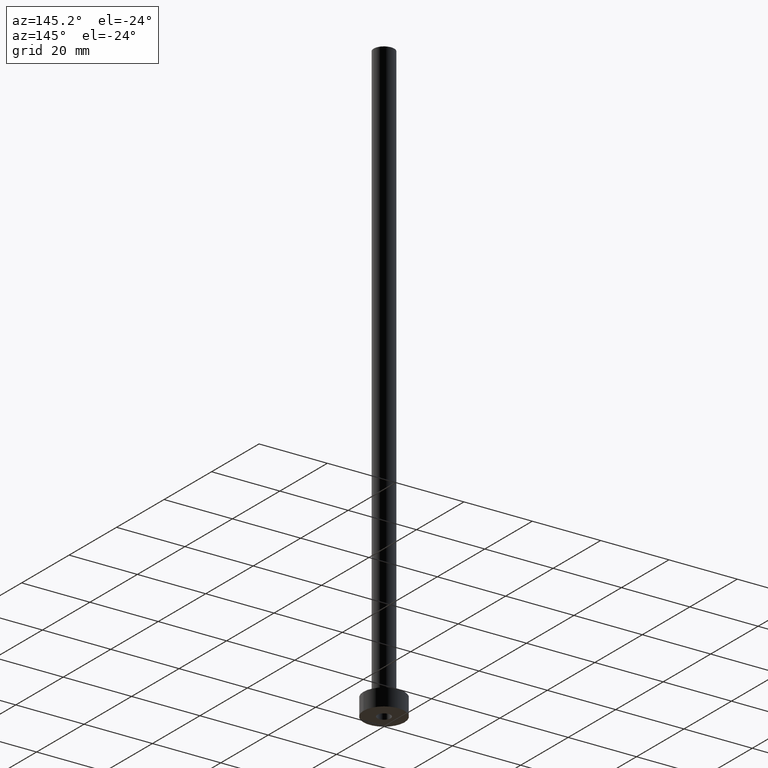
[diagram: clean part render]
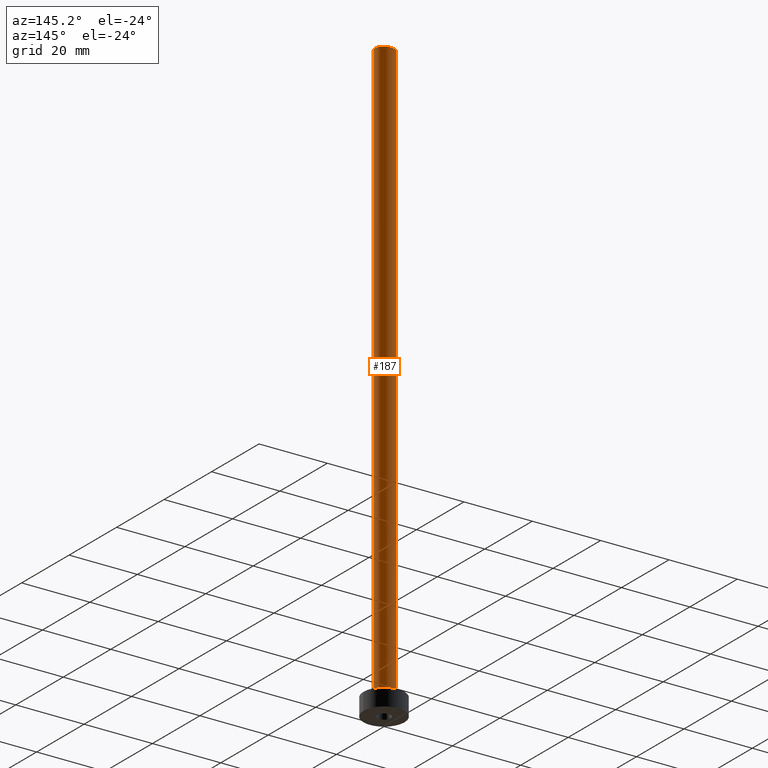
[diagram: same view with one face highlighted and labeled with its STEP entity id]
A machine part, auxiliary view. The second image highlights one B-rep face of the part: STEP entity #187.
In plain terms, the highlighted cylindrical surface (edge-blend (fillet) strip) has radius 3 mm, axis along (-0, -0, -1).
Its self-contained STEP definition (entity closure, byte-faithful):
#27 = CARTESIAN_POINT ( 'NONE',  ( 3.000000000000000444, 3.673940397442060361E-16, 5.500000000000005329 ) ) ;
#28 = DIRECTION ( 'NONE',  ( -0.000000000000000000, -0.000000000000000000, -1.000000000000000000 ) ) ;
#37 = DIRECTION ( 'NONE',  ( 0.000000000000000000, 0.000000000000000000, 1.000000000000000000 ) ) ;
#59 = LINE ( 'NONE', #452, #266 ) ;
#69 = CARTESIAN_POINT ( 'NONE',  ( -3.000000000000000444, 0.000000000000000000, 175.0000000000000284 ) ) ;
#73 = CYLINDRICAL_SURFACE ( 'NONE', #107, 3.000000000000000444 ) ;
#75 = AXIS2_PLACEMENT_3D ( 'NONE', #349, #37, #164 ) ;
#90 = EDGE_LOOP ( 'NONE', ( #195, #238, #217, #96 ) ) ;
#93 = VERTEX_POINT ( 'NONE', #69 ) ;
#96 = ORIENTED_EDGE ( 'NONE', *, *, #151, .F. ) ;
#101 = DIRECTION ( 'NONE',  ( 1.000000000000000000, 0.000000000000000000, 0.000000000000000000 ) ) ;
#107 = AXIS2_PLACEMENT_3D ( 'NONE', #383, #204, #229 ) ;
#120 = EDGE_CURVE ( 'NONE', #189, #93, #265, .T. ) ;
#121 = VECTOR ( 'NONE', #345, 1000.000000000000000 ) ;
#151 = EDGE_CURVE ( 'NONE', #93, #347, #194, .T. ) ;
#164 = DIRECTION ( 'NONE',  ( 1.000000000000000000, 0.000000000000000000, 0.000000000000000000 ) ) ;
#178 = VERTEX_POINT ( 'NONE', #27 ) ;
#187 = ADVANCED_FACE ( 'NONE', ( #329 ), #73, .T. ) ;
#189 = VERTEX_POINT ( 'NONE', #261 ) ;
#190 = CARTESIAN_POINT ( 'NONE',  ( -3.000000000000000444, 0.000000000000000000, 175.0000000000000284 ) ) ;
#194 = LINE ( 'NONE', #190, #121 ) ;
#195 = ORIENTED_EDGE ( 'NONE', *, *, #120, .F. ) ;
#204 = DIRECTION ( 'NONE',  ( -0.000000000000000000, -0.000000000000000000, -1.000000000000000000 ) ) ;
#217 = ORIENTED_EDGE ( 'NONE', *, *, #416, .T. ) ;
#229 = DIRECTION ( 'NONE',  ( -1.000000000000000000, 0.000000000000000000, 0.000000000000000000 ) ) ;
#238 = ORIENTED_EDGE ( 'NONE', *, *, #350, .T. ) ;
#261 = CARTESIAN_POINT ( 'NONE',  ( 3.000000000000000444, 3.673940397442060361E-16, 175.0000000000000284 ) ) ;
#265 = CIRCLE ( 'NONE', #436, 3.000000000000000444 ) ;
#266 = VECTOR ( 'NONE', #28, 1000.000000000000000 ) ;
#329 = FACE_OUTER_BOUND ( 'NONE', #90, .T. ) ;
#341 = CARTESIAN_POINT ( 'NONE',  ( -3.000000000000000444, 0.000000000000000000, 5.500000000000005329 ) ) ;
#345 = DIRECTION ( 'NONE',  ( -0.000000000000000000, -0.000000000000000000, -1.000000000000000000 ) ) ;
#347 = VERTEX_POINT ( 'NONE', #341 ) ;
#349 = CARTESIAN_POINT ( 'NONE',  ( 0.000000000000000000, 0.000000000000000000, 5.500000000000005329 ) ) ;
#350 = EDGE_CURVE ( 'NONE', #189, #178, #59, .T. ) ;
#383 = CARTESIAN_POINT ( 'NONE',  ( 0.000000000000000000, 0.000000000000000000, 175.0000000000000284 ) ) ;
#387 = DIRECTION ( 'NONE',  ( 0.000000000000000000, 0.000000000000000000, 1.000000000000000000 ) ) ;
#396 = CIRCLE ( 'NONE', #75, 3.000000000000000444 ) ;
#410 = CARTESIAN_POINT ( 'NONE',  ( 0.000000000000000000, 0.000000000000000000, 175.0000000000000284 ) ) ;
#416 = EDGE_CURVE ( 'NONE', #178, #347, #396, .T. ) ;
#436 = AXIS2_PLACEMENT_3D ( 'NONE', #410, #387, #101 ) ;
#452 = CARTESIAN_POINT ( 'NONE',  ( 3.000000000000000444, 3.673940397442060361E-16, 175.0000000000000284 ) ) ;